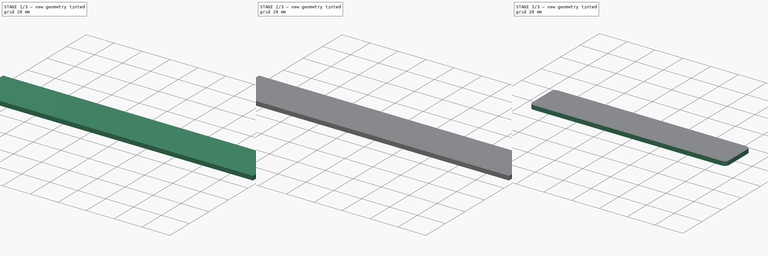
[diagram: build sequence overview — one tinted view per stage of 3, left to right]
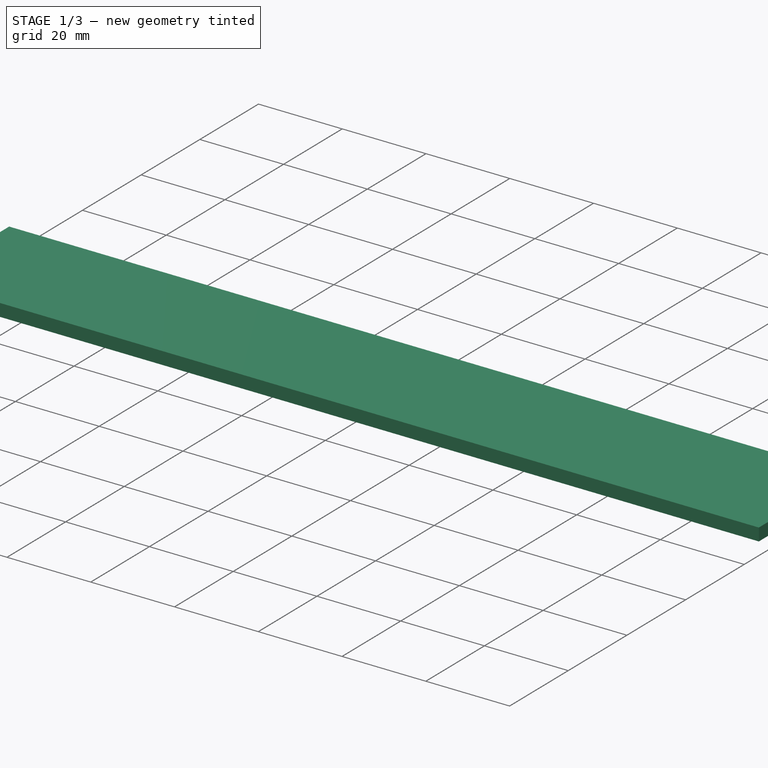
[diagram: stage 1 of 3 — iso view after this stage's code; geometry added in this stage tinted green]
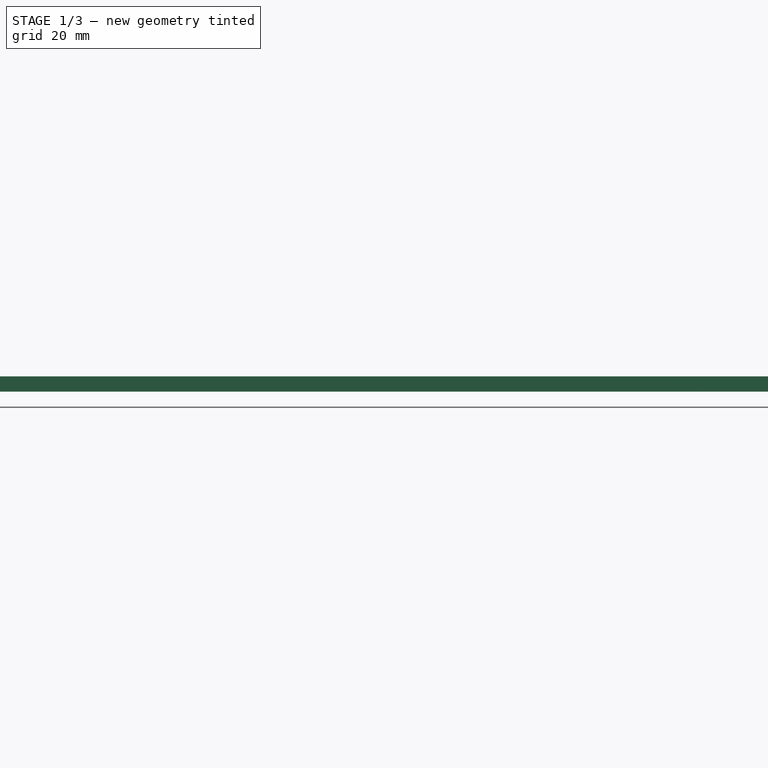
[diagram: stage 1 of 3 — front view after this stage's code; geometry added in this stage tinted green]
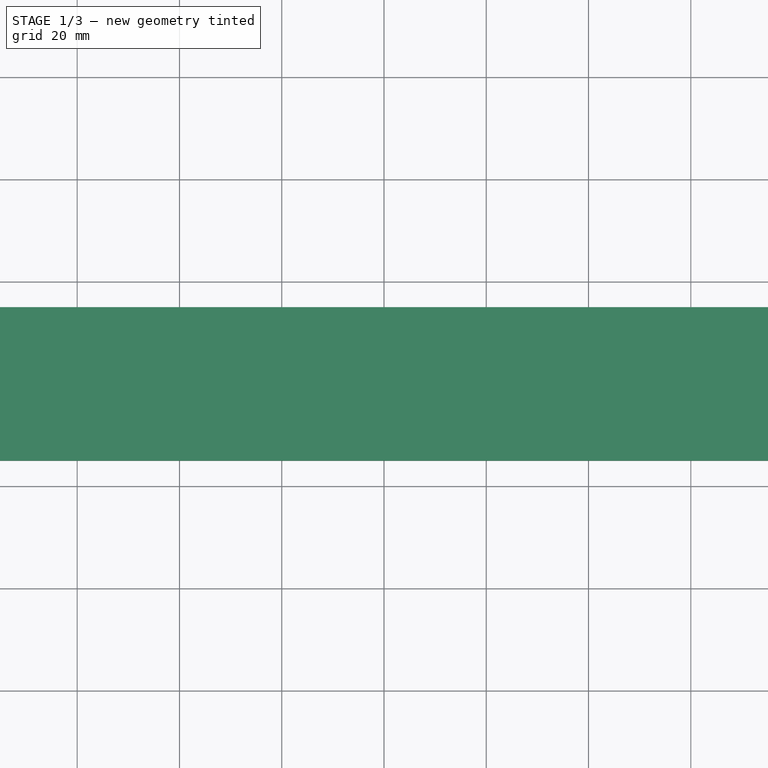
[diagram: stage 1 of 3 — top view after this stage's code; geometry added in this stage tinted green]
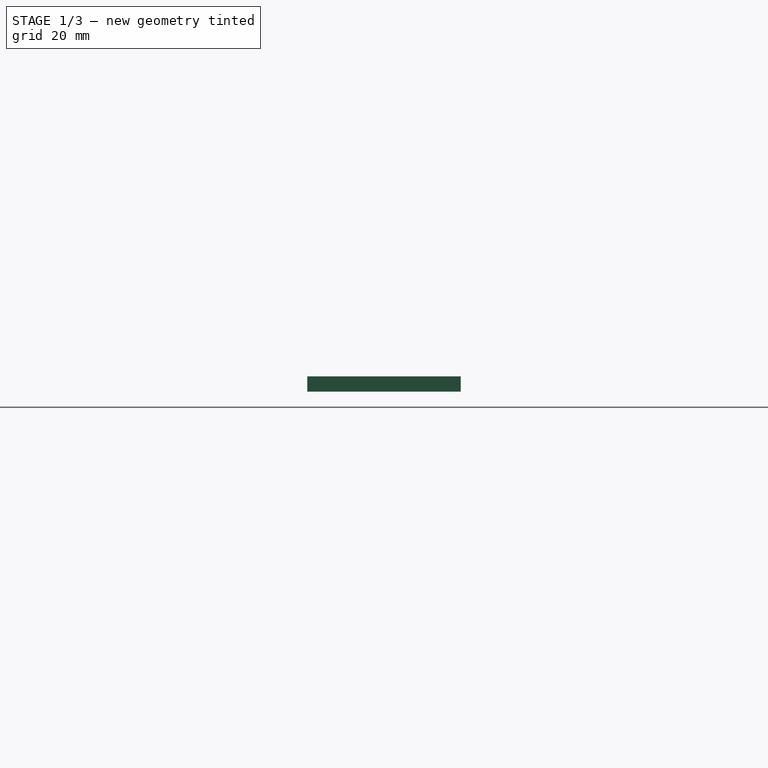
[diagram: stage 1 of 3 — right view after this stage's code; geometry added in this stage tinted green]
FCSTD DOCUMENT  (FreeCAD 0.20R29603 (Git))
Label: NCC-74656
License: All rights reserved
LicenseURL: http://en.wikipedia.org/wiki/All_rights_reserved
objects: Sketcher::SketchObject×2, PartDesign::Pad×2, PartDesign::Body×2, Part::Part2DObjectPython×1, Part::Extrusion×1, Part::Cut×1, PartDesign::FeatureBase×1, PartDesign::Pocket×1, PartDesign::Fillet×1
note: 16 computed .brp shape members not serialized (recipe doc carries the construction recipe); baked Part::Feature solids carry a one-line shape summary decoded from their .brp

FEATURE [Sketcher::SketchObject] Sketch
  FullyConstrained = true
  MapMode = 5
  Support = -> [XY_Plane]
  sketch-geometry (4):
    g0: LineSegment StartX=-100 StartY=15 StartZ=0 EndX=100 EndY=15 EndZ=0
    g1: LineSegment StartX=100 StartY=15 StartZ=0 EndX=100 EndY=-15 EndZ=0
    g2: LineSegment StartX=100 StartY=-15 StartZ=0 EndX=-100 EndY=-15 EndZ=0
    g3: LineSegment StartX=-100 StartY=-15 StartZ=0 EndX=-100 EndY=15 EndZ=0
  constraints (10):
    c: Coincident(g0,g1)
    c: Coincident(g1,g2)
    c: Coincident(g2,g3)
    c: Coincident(g3,g0)
    c: Horizontal(g2)
    c: Vertical(g1)
    c: Symmetric(g0,g0,g-2)
    c: Symmetric(g2,g0,g-1)
    c: DistanceY(g3,g3) = 30
    c: DistanceX(g2,g2) = 200
FEATURE [PartDesign::Pad] Pad
  Direction = (0,0,1)
  Length = 2
  Length2 = 10
  Profile = -> Sketch
  ReferenceAxis = -> Sketch [N_Axis]
  Type = 0
FEATURE [PartDesign::Pad] Pad001
  BaseFeature = -> Pad
  Direction = (0,0,1)
  Length = 1
  Length2 = 10
  Profile = -> Pad [Face6]
  Type = 0
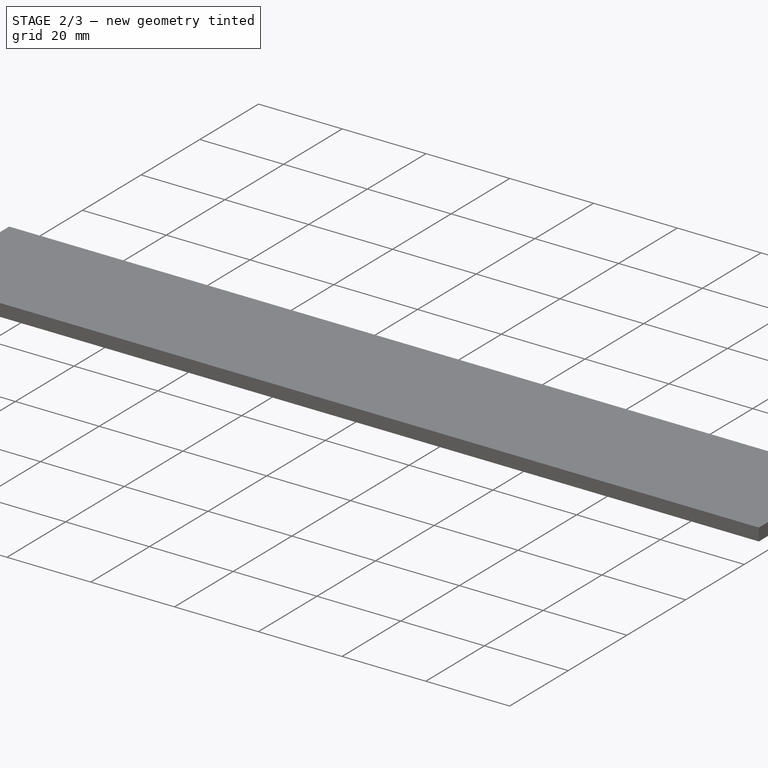
[diagram: stage 2 of 3 — iso view after this stage's code; geometry added in this stage tinted green]
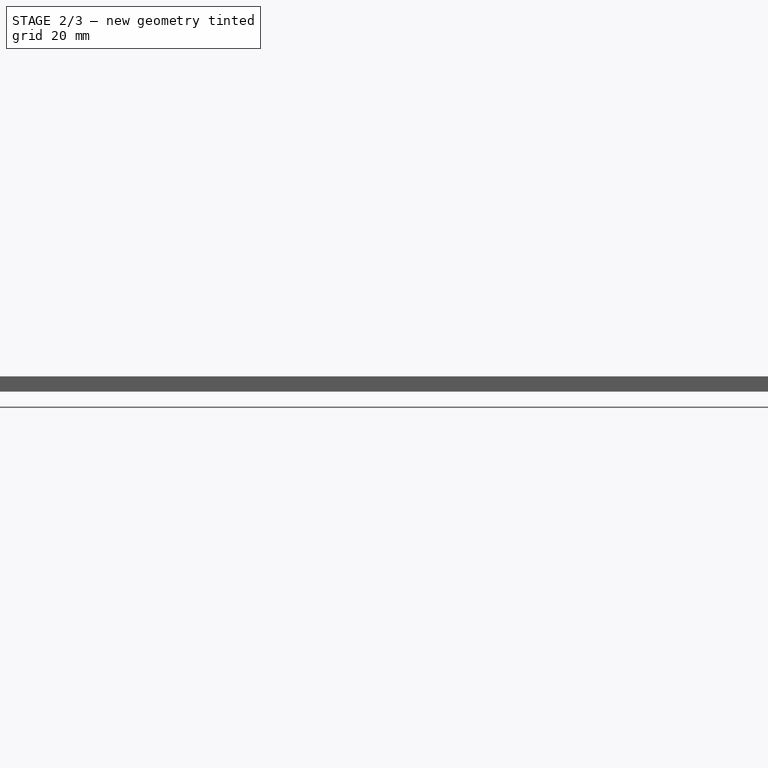
[diagram: stage 2 of 3 — front view after this stage's code; geometry added in this stage tinted green]
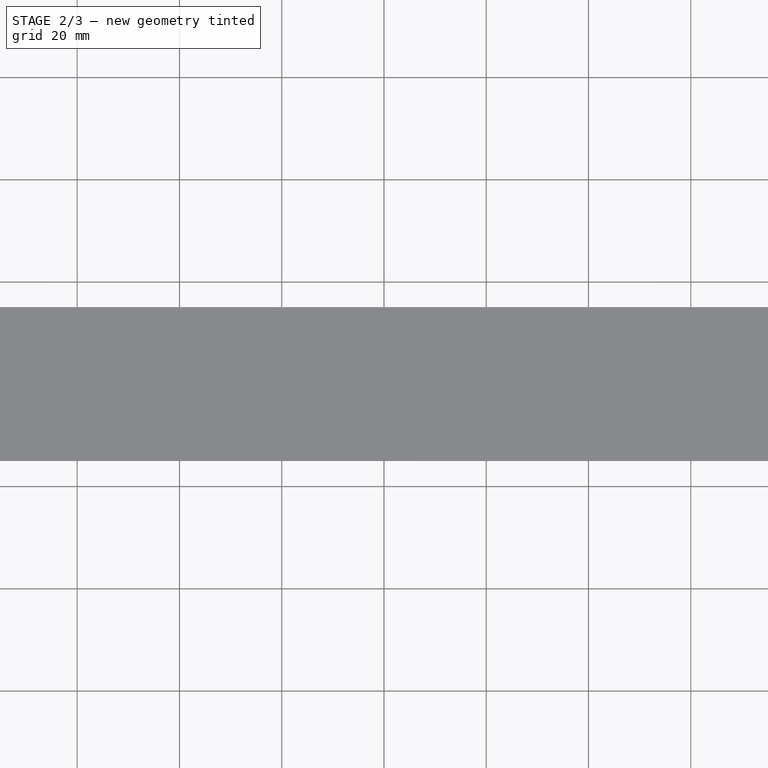
[diagram: stage 2 of 3 — top view after this stage's code; geometry added in this stage tinted green]
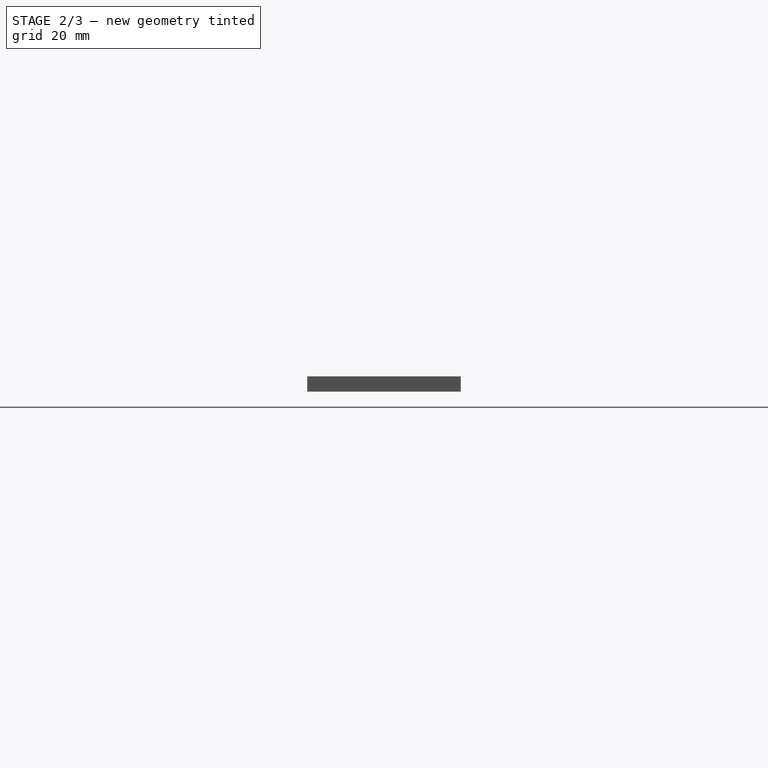
[diagram: stage 2 of 3 — right view after this stage's code; geometry added in this stage tinted green]
FEATURE [Part::Part2DObjectPython] ShapeString  # Draft 2D object (typed FeaturePython)
  FontFile = <userpath>/Downloads/Ubuntu_Mono/UbuntuMono-Bold.ttf
  MakeFace = true
  Placement = pos=(-94.45,8.94,0) rot=(1,0,0;3.14159rad)
  Size = 10
  String = NCC-74656
  Tracking = 0
FEATURE [Part::Extrusion] Extrude
  Base = -> ShapeString
  Dir = (0,0,-1)
  DirMode = 2
  FaceMakerClass = Part::FaceMakerBullseye
  LengthFwd = 10
  LengthRev = 0
  Placement = pos=(25,0,2) rot=(0,0,1;0rad)
  Solid = false
  Symmetric = false
FEATURE [PartDesign::Body] Body
  Group = -> [Sketch,Pad,Pad001]
  Origin = -> Origin
  Tip = -> Pad001
FEATURE [Part::Cut] Cut
  Base = -> Body
  Tool = -> Extrude
FEATURE [PartDesign::FeatureBase] BaseFeature
  BaseFeature = -> Cut
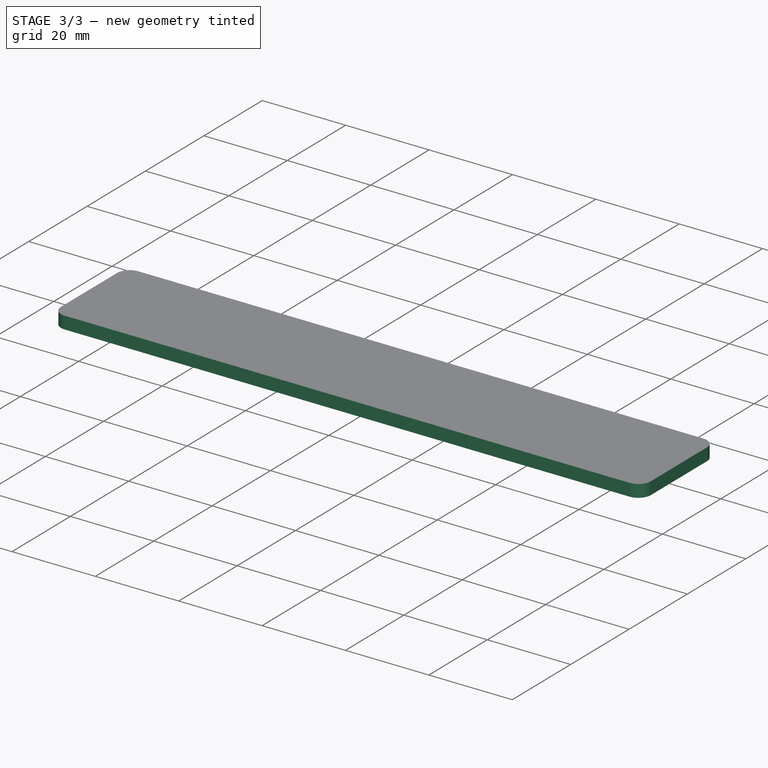
[diagram: stage 3 of 3 — iso view after this stage's code; geometry added in this stage tinted green]
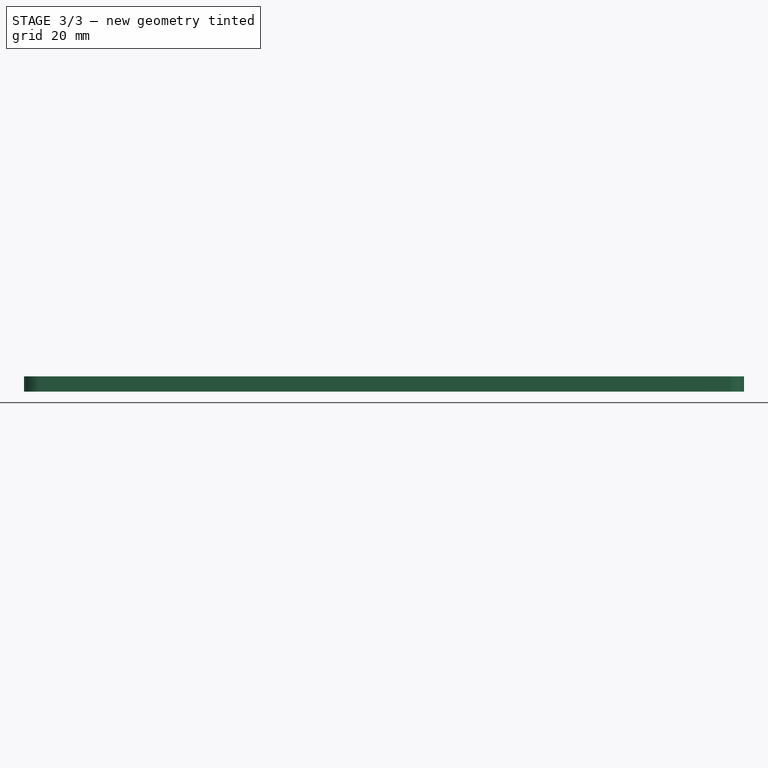
[diagram: stage 3 of 3 — front view after this stage's code; geometry added in this stage tinted green]
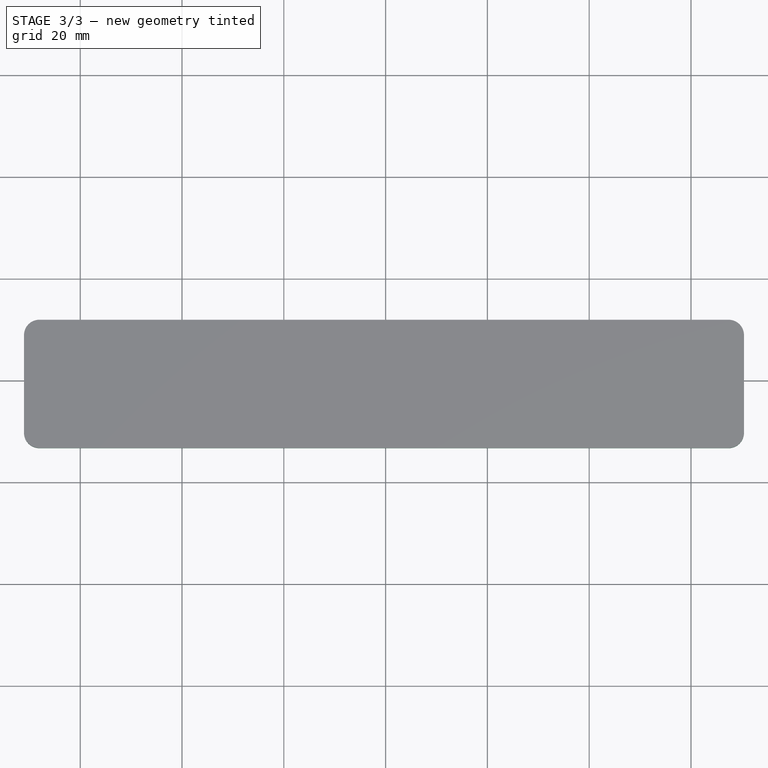
[diagram: stage 3 of 3 — top view after this stage's code; geometry added in this stage tinted green]
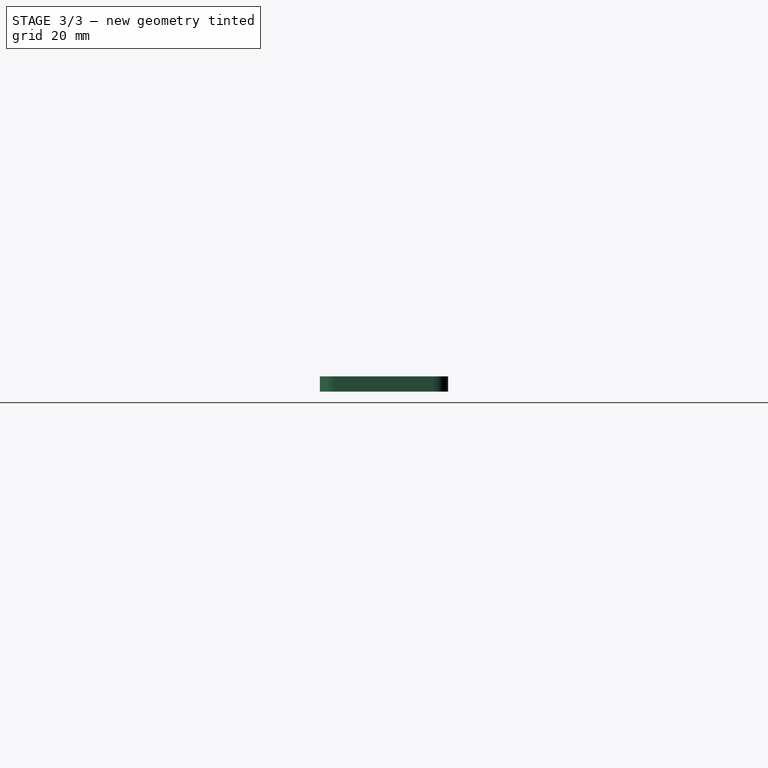
[diagram: stage 3 of 3 — right view after this stage's code; geometry added in this stage tinted green]
FEATURE [Sketcher::SketchObject] Sketch001
  ExternalGeometry = -> [BaseFeature]
  FullyConstrained = false
  MapMode = 5
  Placement = pos=(0,0,0) rot=(1,0,0;3.14159rad)
  Support = -> [BaseFeature]
  sketch-geometry (11):
    g0: LineSegment StartX=-71.04 StartY=13.26 StartZ=0 EndX=70.41 EndY=13.26 EndZ=0
    g1: LineSegment StartX=70.41 StartY=13.26 StartZ=0 EndX=70.41 EndY=-11.94 EndZ=0
    g2: LineSegment StartX=70.41 StartY=-11.94 StartZ=0 EndX=-71.04 EndY=-11.94 EndZ=0
    g3: LineSegment StartX=-71.04 StartY=-11.94 StartZ=0 EndX=-71.04 EndY=13.26 EndZ=0
    g4: LineSegment StartX=67.41 StartY=13.26 StartZ=0 EndX=67.41 EndY=-11.94 EndZ=0
    g5: LineSegment StartX=-68.04 StartY=0.66 StartZ=0 EndX=67.41 EndY=0.66 EndZ=0
    g6: GeomPoint X=-5.8251 Y=0.66 Z=0
    g7: LineSegment StartX=-100 StartY=15 StartZ=0 EndX=100 EndY=15 EndZ=0
    g8: LineSegment StartX=100 StartY=15 StartZ=0 EndX=100 EndY=-15 EndZ=0
    g9: LineSegment StartX=100 StartY=-15 StartZ=0 EndX=-100 EndY=-15 EndZ=0
    g10: LineSegment StartX=-100 StartY=-15 StartZ=0 EndX=-100 EndY=15 EndZ=0
  constraints (29):
    c: Coincident(g0,g1)
    c: Coincident(g1,g2)
    c: Coincident(g2,g3)
    c: Coincident(g3,g0)
    c: Horizontal(g0)
    c: Horizontal(g2)
    c: Vertical(g1)
    c: PointOnObject(g4,g0)
    c: PointOnObject(g4,g2)
    c: Vertical(g4)
    c: Symmetric(g-4,g-4,g5)
    c: Symmetric(g2,g0,g5)
    c: PointOnObject(g-6,g4)
    c: Vertical(g5,g-4)
    c: Vertical(g5,g4)
    c: PointOnObject(g6,g5)
    c: DistanceX(g0,g-4) = 3
    c: DistanceX(g4,g0) = 3
    c: DistanceY(g2,g-4) = 3
    c: Coincident(g7,g8)
    c: Coincident(g8,g9)
    c: Coincident(g9,g10)
    c: Coincident(g10,g7)
    c: Horizontal(g7)
    c: Horizontal(g9)
    c: Vertical(g8)
    c: Vertical(g10)
    c: Coincident(g8,g-3)
    c: Coincident(g7,g-7)
FEATURE [PartDesign::Pocket] Pocket
  BaseFeature = -> BaseFeature
  Direction = (0,0,1)
  Length = 5
  Length2 = 5
  Profile = -> Sketch001
  ReferenceAxis = -> Sketch001 [N_Axis]
  Type = 1
FEATURE [PartDesign::Fillet] Fillet
  Base = -> Pocket [Edge168,Edge170,Edge174,Edge172]
  BaseFeature = -> Pocket
  Radius = 3
  SupportTransform = false
  UseAllEdges = false
FEATURE [PartDesign::Body] Body001
  BaseFeature = -> Cut
  Group = -> [BaseFeature,Sketch001,Pocket,Fillet]
  Origin = -> Origin001
  Tip = -> Fillet
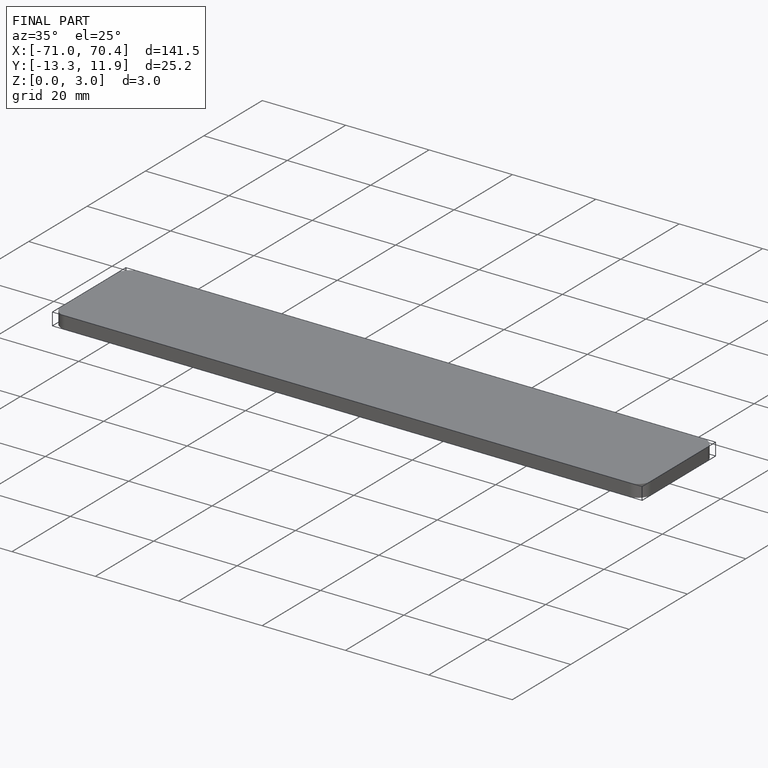
[diagram: finished part — iso view with bounding-box wireframe]
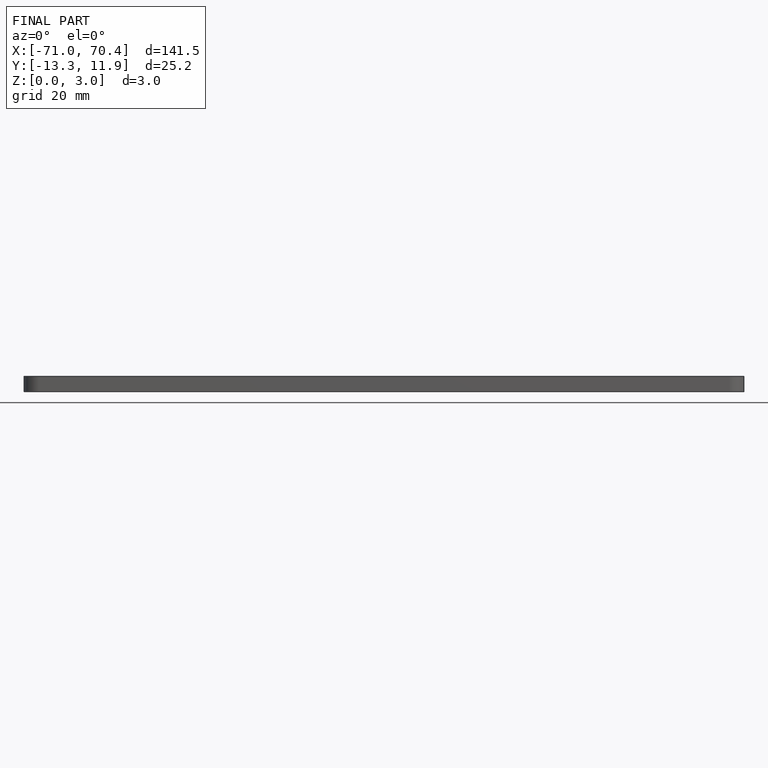
[diagram: finished part — front view with bounding-box wireframe]
